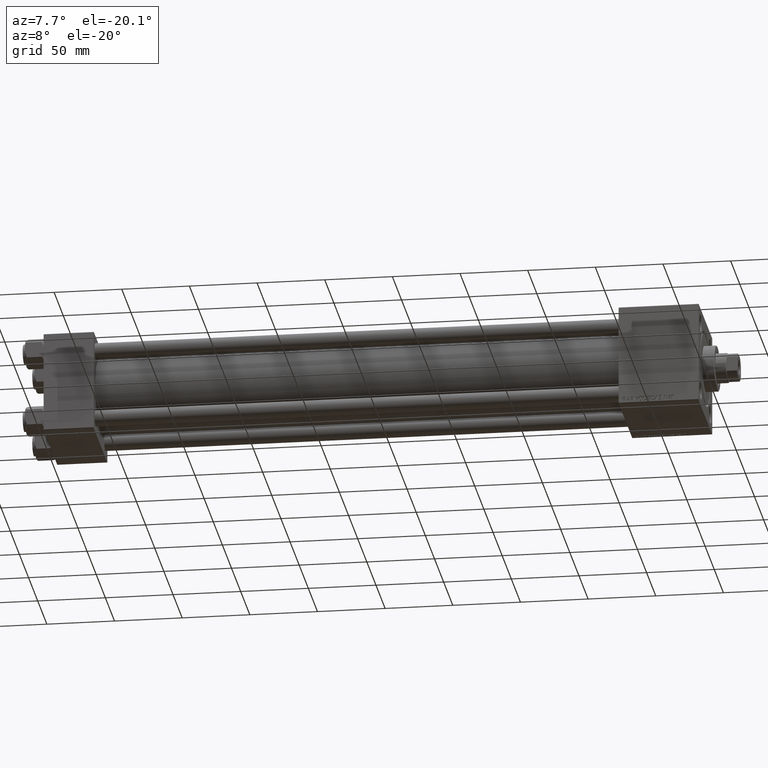
[diagram: clean part render]
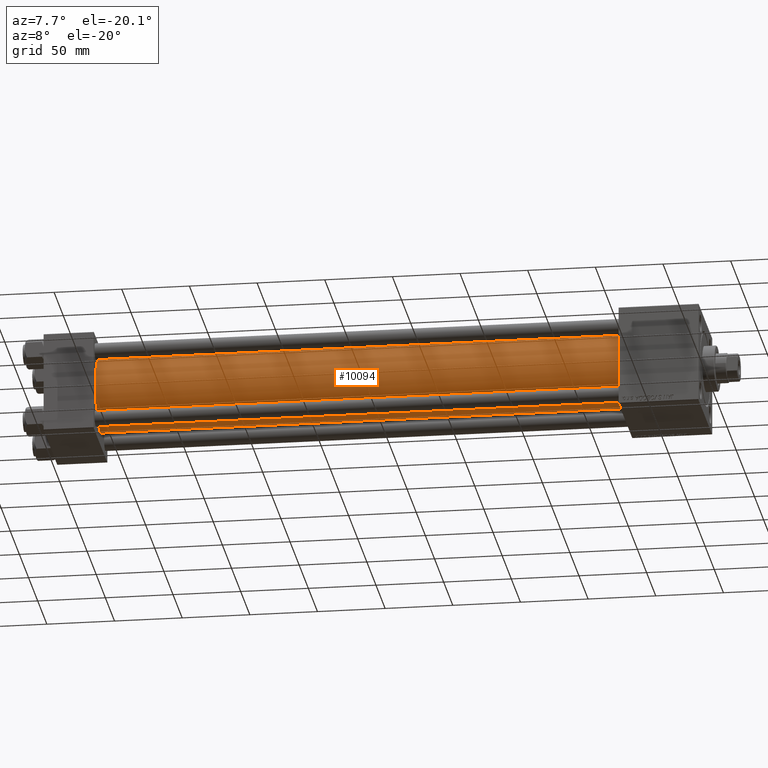
[diagram: same view with one face highlighted and labeled with its STEP entity id]
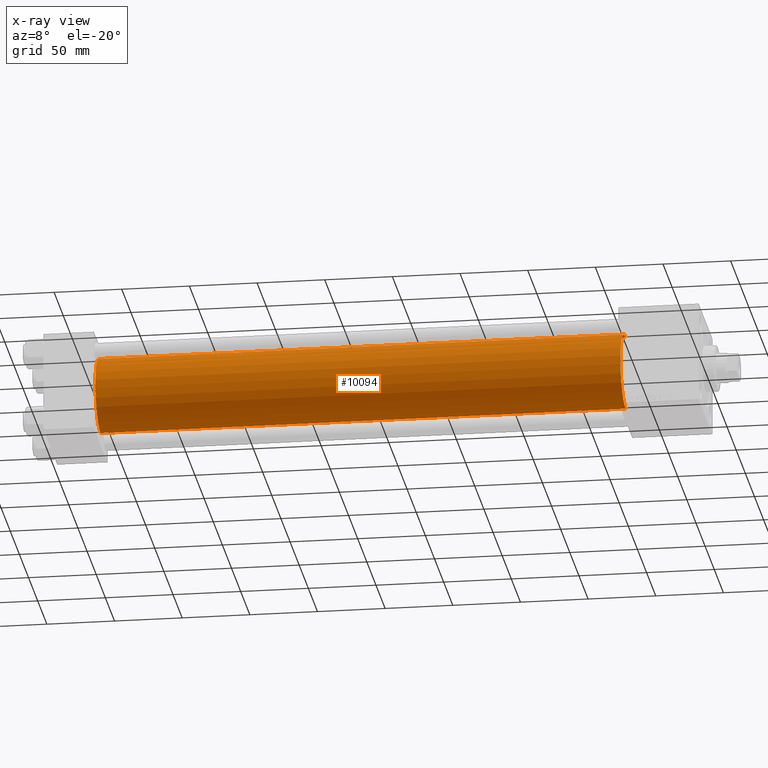
[diagram: x-ray of the same camera — body ghosted, the highlighted face saturated]
A machine part, auxiliary view. The second image highlights one B-rep face of the part: STEP entity #10094.
The next image is the same camera in x-ray: the body ghosted, the highlighted face saturated — about 0% of this face is hidden behind the body in this view.
In plain terms, the highlighted cylindrical surface (partial cylindrical patch) has radius 28 mm, axis along (-1, -0, -0).
Its self-contained STEP definition (entity closure, byte-faithful):
#160 = CYLINDRICAL_SURFACE ( 'NONE', #47810, 28.00000000000000000 ) ;
#1162 = ORIENTED_EDGE ( 'NONE', *, *, #29143, .T. ) ;
#1225 = CIRCLE ( 'NONE', #23887, 28.00000000000000000 ) ;
#4222 = FACE_OUTER_BOUND ( 'NONE', #25865, .T. ) ;
#6672 = CARTESIAN_POINT ( 'NONE',  ( 36.99999999999997868, -2.602085213965210642E-15, 0.000000000000000000 ) ) ;
#6703 = VERTEX_POINT ( 'NONE', #17741 ) ;
#7803 = VECTOR ( 'NONE', #13047, 1000.000000000000000 ) ;
#8034 = CARTESIAN_POINT ( 'NONE',  ( 425.0000000000000000, -2.602085213965210642E-15, 0.000000000000000000 ) ) ;
#9445 = DIRECTION ( 'NONE',  ( 1.000000000000000000, 0.000000000000000000, 0.000000000000000000 ) ) ;
#10094 = ADVANCED_FACE ( 'NONE', ( #4222 ), #160, .T. ) ;
#10490 = CARTESIAN_POINT ( 'NONE',  ( 36.99999999999997868, -2.602085213965210642E-15, 28.00000000000000000 ) ) ;
#10722 = DIRECTION ( 'NONE',  ( 1.000000000000000000, -0.000000000000000000, 0.000000000000000000 ) ) ;
#11168 = DIRECTION ( 'NONE',  ( -1.000000000000000000, -0.000000000000000000, -0.000000000000000000 ) ) ;
#11840 = DIRECTION ( 'NONE',  ( 0.000000000000000000, 0.000000000000000000, 1.000000000000000000 ) ) ;
#13047 = DIRECTION ( 'NONE',  ( -1.000000000000000000, -0.000000000000000000, -0.000000000000000000 ) ) ;
#15628 = VERTEX_POINT ( 'NONE', #46040 ) ;
#16632 = DIRECTION ( 'NONE',  ( -1.000000000000000000, -0.000000000000000000, -0.000000000000000000 ) ) ;
#16796 = ORIENTED_EDGE ( 'NONE', *, *, #25929, .F. ) ;
#17613 = CARTESIAN_POINT ( 'NONE',  ( 425.0000000000000000, 8.269258236473776482E-16, -28.00000000000000000 ) ) ;
#17741 = CARTESIAN_POINT ( 'NONE',  ( 36.99999999999997868, 8.269258236473776482E-16, -28.00000000000000000 ) ) ;
#21366 = DIRECTION ( 'NONE',  ( 0.000000000000000000, 0.000000000000000000, -1.000000000000000000 ) ) ;
#22100 = CARTESIAN_POINT ( 'NONE',  ( 425.0000000000000000, -2.602085213965210642E-15, 0.000000000000000000 ) ) ;
#23887 = AXIS2_PLACEMENT_3D ( 'NONE', #22100, #9445, #21366 ) ;
#24249 = VECTOR ( 'NONE', #11168, 1000.000000000000000 ) ;
#25056 = VERTEX_POINT ( 'NONE', #10490 ) ;
#25865 = EDGE_LOOP ( 'NONE', ( #37676, #16796, #1162, #45262 ) ) ;
#25929 = EDGE_CURVE ( 'NONE', #15628, #46010, #1225, .T. ) ;
#26387 = CARTESIAN_POINT ( 'NONE',  ( 425.0000000000000000, 8.269258236473776482E-16, -28.00000000000000000 ) ) ;
#26702 = AXIS2_PLACEMENT_3D ( 'NONE', #6672, #10722, #41186 ) ;
#29143 = EDGE_CURVE ( 'NONE', #15628, #25056, #47825, .T. ) ;
#35402 = CARTESIAN_POINT ( 'NONE',  ( 425.0000000000000000, -2.602085213965210642E-15, 28.00000000000000000 ) ) ;
#37676 = ORIENTED_EDGE ( 'NONE', *, *, #38130, .F. ) ;
#38130 = EDGE_CURVE ( 'NONE', #46010, #6703, #41368, .T. ) ;
#41186 = DIRECTION ( 'NONE',  ( 0.000000000000000000, 0.000000000000000000, 1.000000000000000000 ) ) ;
#41368 = LINE ( 'NONE', #26387, #24249 ) ;
#42724 = EDGE_CURVE ( 'NONE', #25056, #6703, #49399, .T. ) ;
#45262 = ORIENTED_EDGE ( 'NONE', *, *, #42724, .T. ) ;
#46010 = VERTEX_POINT ( 'NONE', #17613 ) ;
#46040 = CARTESIAN_POINT ( 'NONE',  ( 425.0000000000000000, -2.602085213965210642E-15, 28.00000000000000000 ) ) ;
#47810 = AXIS2_PLACEMENT_3D ( 'NONE', #8034, #16632, #11840 ) ;
#47825 = LINE ( 'NONE', #35402, #7803 ) ;
#49399 = CIRCLE ( 'NONE', #26702, 28.00000000000000000 ) ;